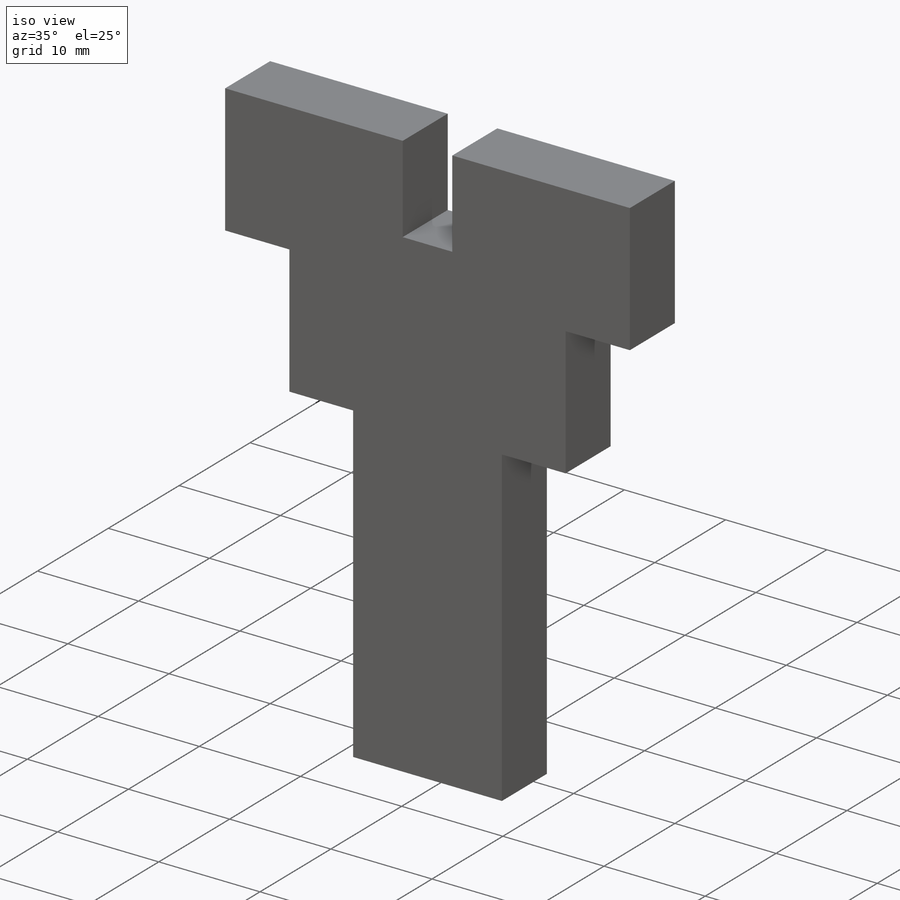
[diagram: iso view]
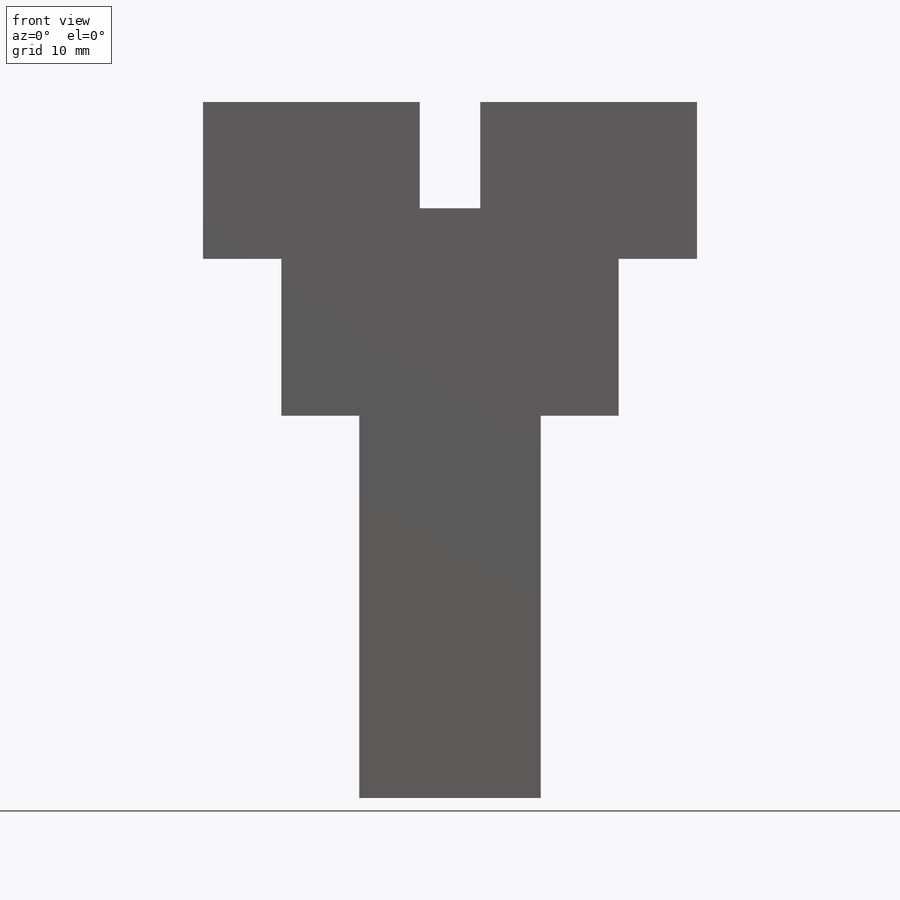
[diagram: front view]
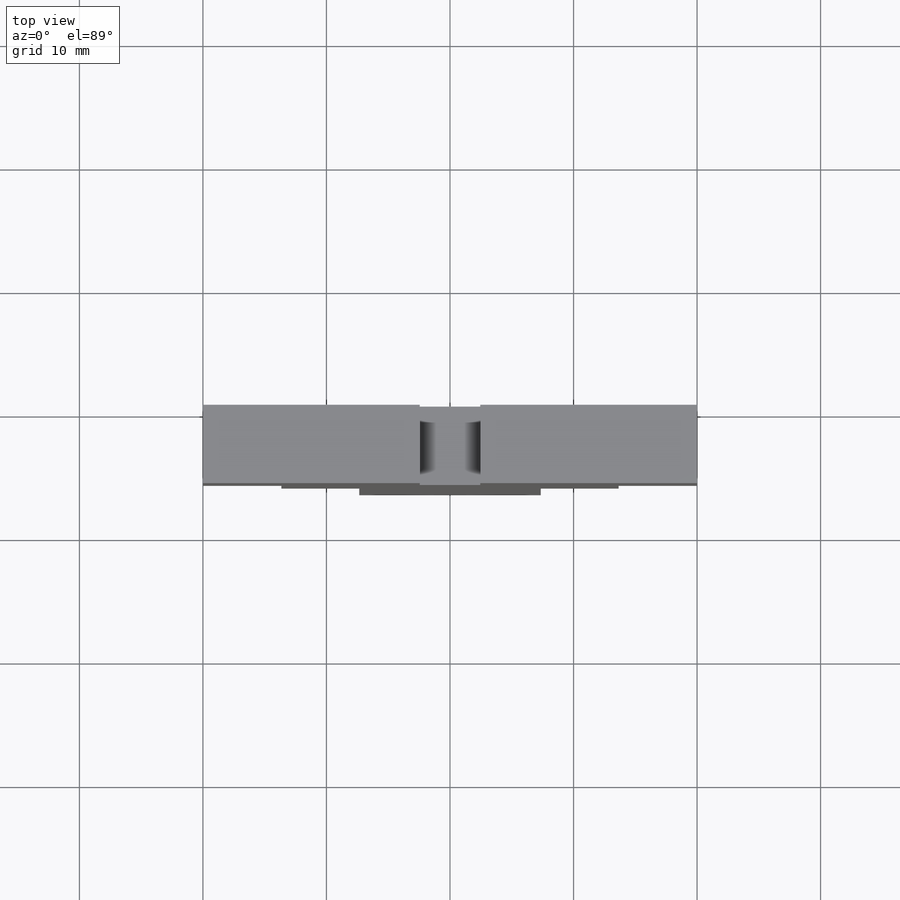
[diagram: top view]
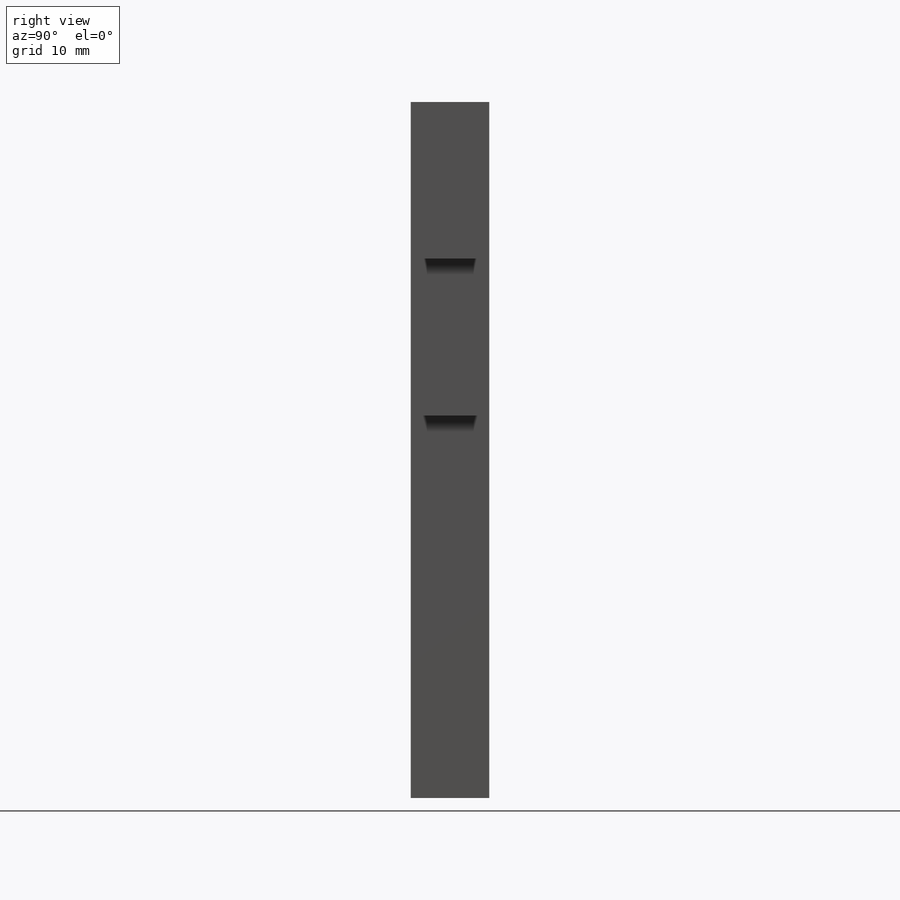
[diagram: right view]
SOLIDWORKS PART (.sldprt)
format: sldprt  version: not decoded by parser v0  size: 188,416 bytes
history: native  units: mm
features: sketch x4, extrude x3, material x1, cut_extrude x1 (+13 scaffold rows collapsed)
feature tree (22):
  scaffold x13  (default folders/planes/origin — collapsed)
  material  "Acrylic (Medium-high impact)"
  sketch  "Sketch2"  dims[c1.D1=~38.144038mm c1.D2=~125.493886mm c2.D1=12.7mm c2.D2=40.0mm]
  extrude  "Boss-Extrude1"  Depth=6.35mm
  sketch  "Sketch3"  dims[c1.D1=~2.941444mm c1.D2=~18.68682mm c2.D1=0.0mm c2.D2=0.0mm c2.D3=6.35mm c2.D4=6.35mm]
  extrude  "Boss-Extrude2"  Depth=12.7mm
  sketch  "Sketch4"  dims[c1.D1=~2.115765mm c1.D2=~7.757805mm c2.D1=0.0mm c2.D2=0.0mm c2.D3=4.9mm c2.D4=20.0mm]
  cut_extrude  "Cut-Extrude1"  Depth=8.6mm
  sketch  "Sketch5"  dims[c1.D1=~2.567681mm c1.D2=~9.41483mm c2.D1=0.0mm c2.D2=0.0mm c2.D3=14.7mm c2.D4=20.0mm]
  extrude  "Boss-Extrude3"  Depth=30.95mm
decode coverage: 8 of 8 modeling features carry decoded parameters
note: ~ marks probable driven/reference dimensions
note: suppression state not decoded; provenance and decode notes live in map.json
